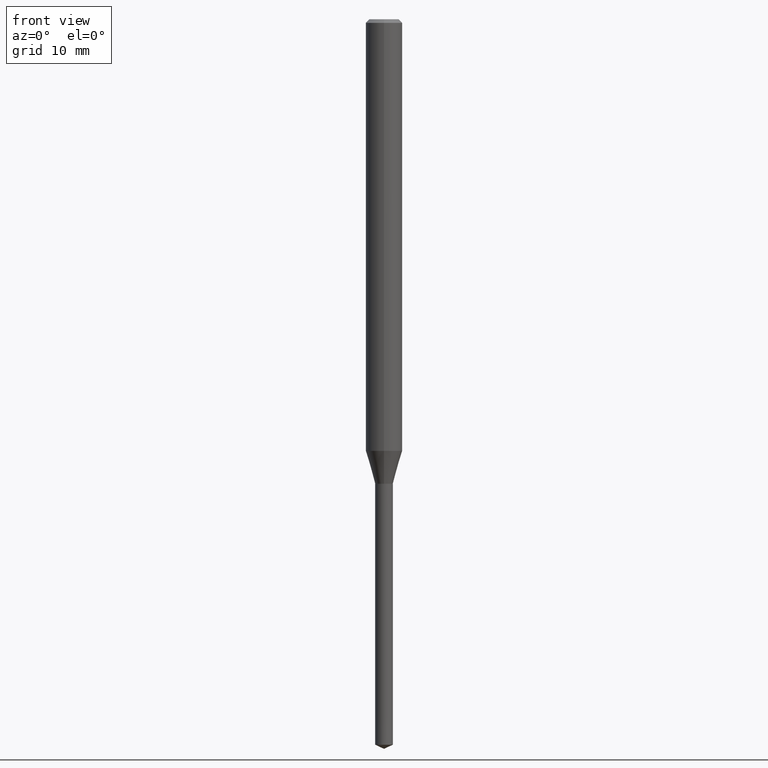
[diagram: clean part render]
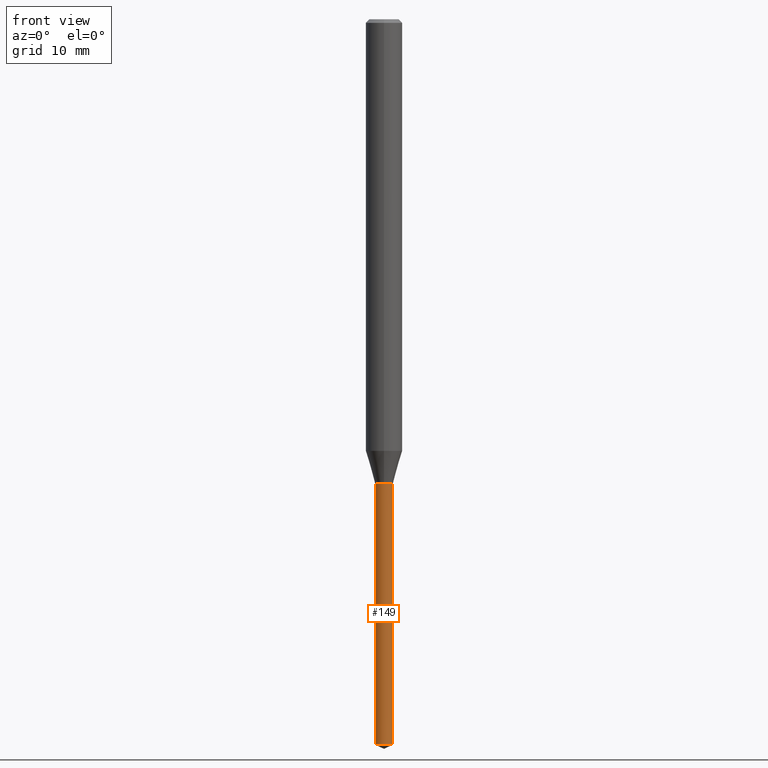
[diagram: same view with one face highlighted and labeled with its STEP entity id]
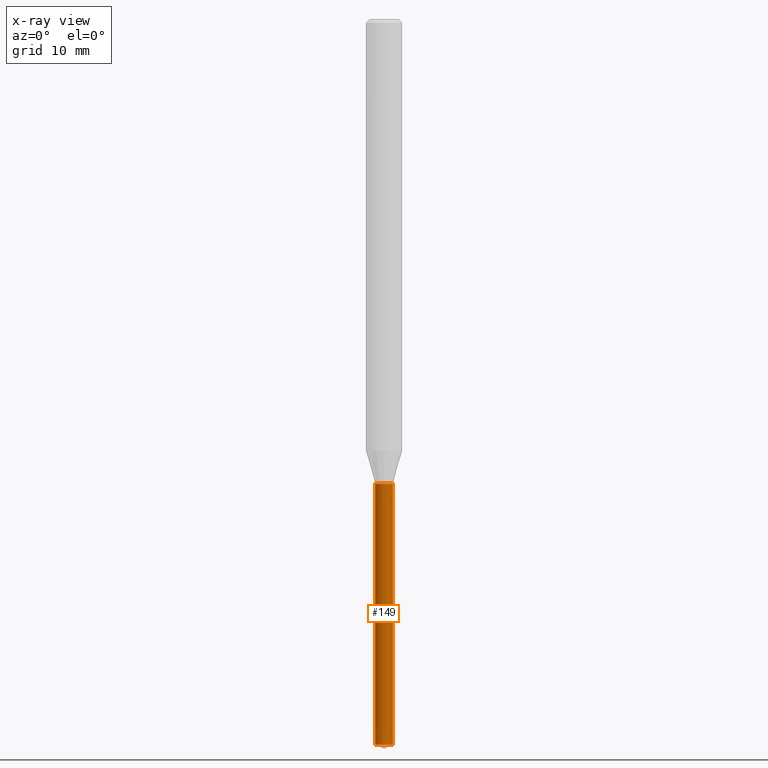
[diagram: x-ray of the same camera — body ghosted, the highlighted face saturated]
A machine part, front view. The second image highlights one B-rep face of the part: STEP entity #149.
The next image is the same camera in x-ray: the body ghosted, the highlighted face saturated — about 0% of this face is hidden behind the body in this view.
In plain terms, the highlighted conical surface has half-angle 0.003 deg.
Its self-contained STEP definition (entity closure, byte-faithful):
#103=VERTEX_POINT('',#240);
#121=EDGE_CURVE('',#103,#173,#259,.T.);
#137=EDGE_CURVE('',#173,#177,#277,.T.);
#149=ADVANCED_FACE('',(#289),#290,.T.);
#151=EDGE_CURVE('',#167,#177,#292,.T.);
#167=VERTEX_POINT('',#310);
#171=EDGE_CURVE('',#167,#103,#315,.T.);
#173=VERTEX_POINT('',#317);
#177=VERTEX_POINT('',#321);
#240=CARTESIAN_POINT('',(0.726,8.89064212875046E-017,-38.2));
#259=CIRCLE('',#412,0.726);
#277=LINE('',#434,#435);
#289=FACE_OUTER_BOUND('',#451,.T.);
#290=CONICAL_SURFACE('',#452,0.7255,4.65941386160728E-005);
#292=CIRCLE('',#455,0.725);
#310=CARTESIAN_POINT('',(0.725,8.87839606521223E-017,-59.66192695));
#315=LINE('',#481,#482);
#317=CARTESIAN_POINT('',(-0.726,0.0,-38.2));
#321=CARTESIAN_POINT('',(-0.725,0.0,-59.66192695));
#412=AXIS2_PLACEMENT_3D('',#571,#572,#573);
#434=CARTESIAN_POINT('',(-0.7255,-8.88451909698135E-017,-48.930963475));
#435=VECTOR('',#598,1.0);
#451=EDGE_LOOP('',(#606,#607,#608,#609));
#452=AXIS2_PLACEMENT_3D('',#610,#611,#612);
#455=AXIS2_PLACEMENT_3D('',#613,#614,#615);
#481=CARTESIAN_POINT('',(0.7255,8.88451909698135E-017,-48.930963475));
#482=VECTOR('',#641,1.0);
#571=CARTESIAN_POINT('',(0.0,0.0,-38.2));
#572=DIRECTION('',(0.0,0.0,-1.0));
#573=DIRECTION('',(-1.0,0.0,0.0));
#598=DIRECTION('',(4.65941385992134E-005,5.70594781794773E-021,-0.999999998914493));
#606=ORIENTED_EDGE('',*,*,#137,.T.);
#607=ORIENTED_EDGE('',*,*,#151,.F.);
#608=ORIENTED_EDGE('',*,*,#171,.T.);
#609=ORIENTED_EDGE('',*,*,#121,.T.);
#610=CARTESIAN_POINT('',(0.0,0.0,-48.930963475));
#611=DIRECTION('',(-0.0,-0.0,1.0));
#612=DIRECTION('',(-1.0,0.0,0.0));
#613=CARTESIAN_POINT('',(0.0,0.0,-59.66192695));
#614=DIRECTION('',(0.0,0.0,-1.0));
#615=DIRECTION('',(-1.0,0.0,0.0));
#641=DIRECTION('',(4.65941385992134E-005,5.70594781794773E-021,0.999999998914493));